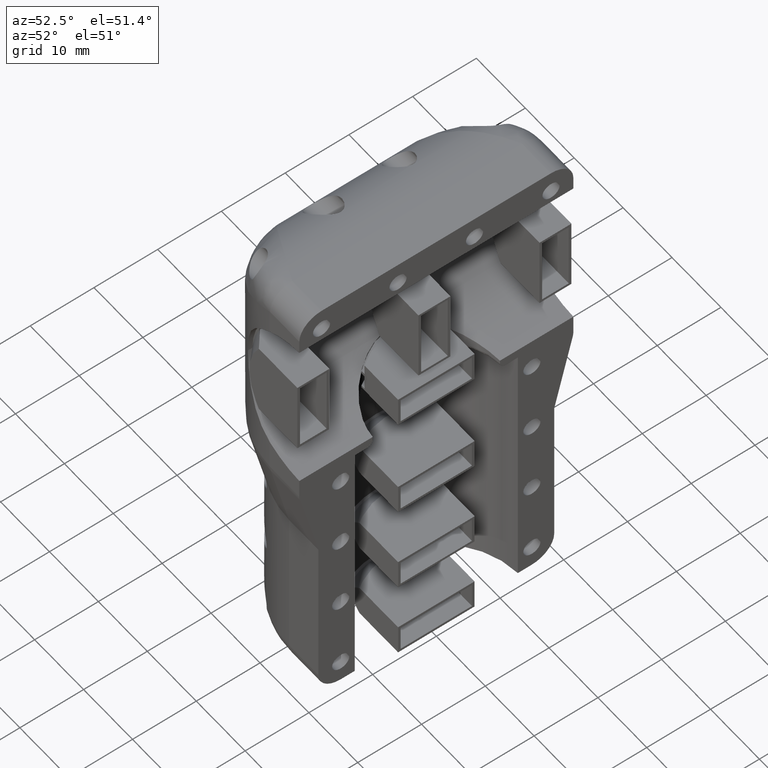
[diagram: clean part render]
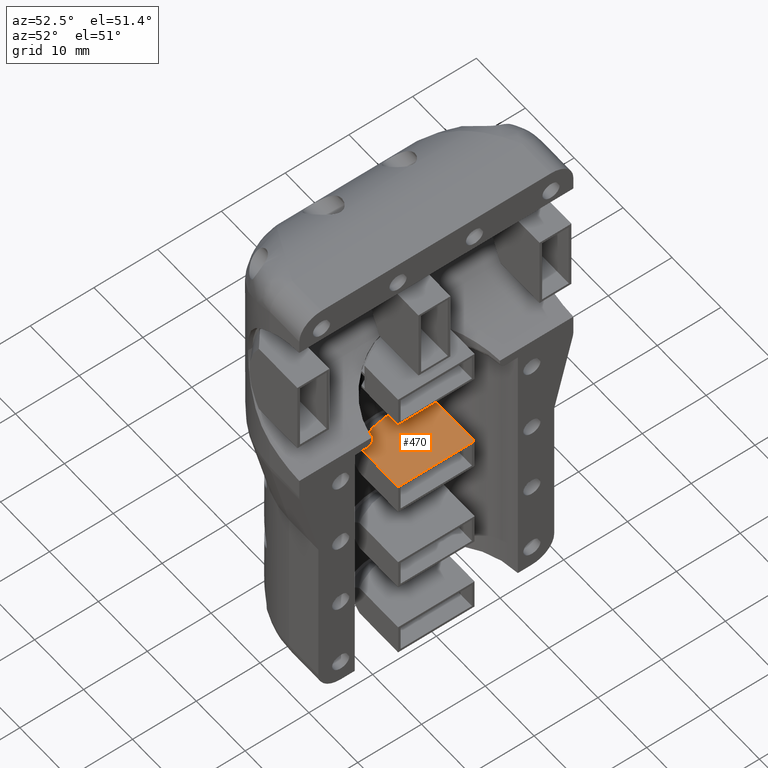
[diagram: same view with one face highlighted and labeled with its STEP entity id]
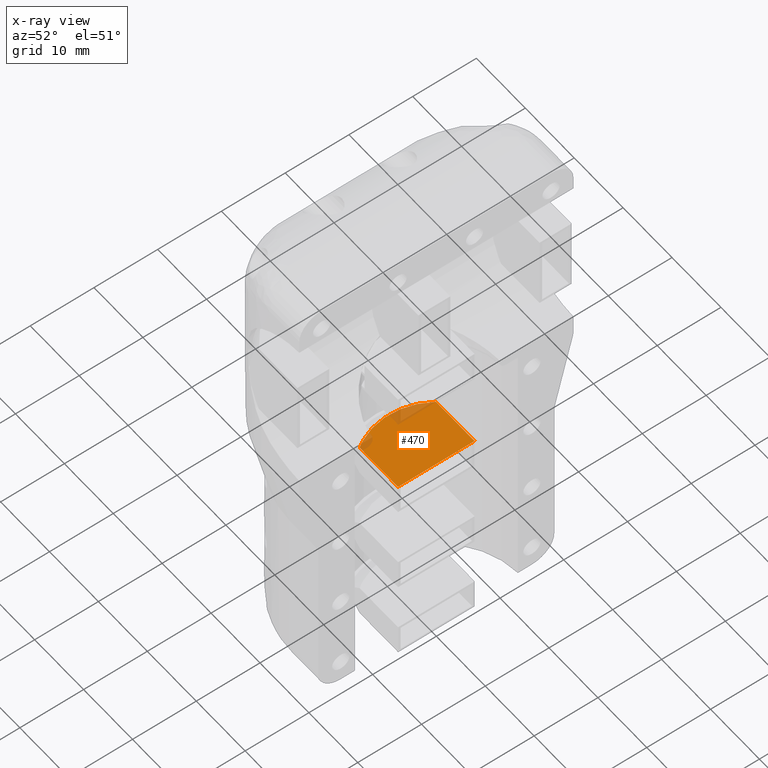
[diagram: x-ray of the same camera — body ghosted, the highlighted face saturated]
A machine part, auxiliary view. The second image highlights one B-rep face of the part: STEP entity #470.
The next image is the same camera in x-ray: the body ghosted, the highlighted face saturated — about 9% of this face is hidden behind the body in this view.
In plain terms, the highlighted planar face has unit normal (0, 0, 1).
Its self-contained STEP definition (entity closure, byte-faithful):
#470=ADVANCED_FACE('',(#722),#2584,.T.);
#722=FACE_OUTER_BOUND('',#1008,.F.);
#1008=EDGE_LOOP('',(#2048,#2049,#2050,#2051,#2052,#2053));
#2048=ORIENTED_EDGE('',*,*,#4986,.T.);
#2049=ORIENTED_EDGE('',*,*,#4985,.T.);
#2050=ORIENTED_EDGE('',*,*,#4984,.T.);
#2051=ORIENTED_EDGE('',*,*,#4973,.F.);
#2052=ORIENTED_EDGE('',*,*,#4974,.F.);
#2053=ORIENTED_EDGE('',*,*,#4975,.F.);
#2584=PLANE('',#6125);
#3622=CIRCLE('',#5936,10.3);
#3623=CIRCLE('',#5937,10.3);
#3624=CIRCLE('',#5938,10.3);
#3916=LINE('',#9737,#4295);
#3917=LINE('',#9738,#4296);
#3918=LINE('',#9739,#4297);
#4295=VECTOR('',#6904,7.87216659304471);
#4296=VECTOR('',#6905,12.0000000060447);
#4297=VECTOR('',#6906,7.87178577275815);
#4973=EDGE_CURVE('',#5292,#5665,#3622,.T.);
#4974=EDGE_CURVE('',#5291,#5292,#3623,.T.);
#4975=EDGE_CURVE('',#5667,#5291,#3624,.T.);
#4984=EDGE_CURVE('',#5289,#5665,#3916,.T.);
#4985=EDGE_CURVE('',#5287,#5289,#3917,.T.);
#4986=EDGE_CURVE('',#5667,#5287,#3918,.T.);
#5287=VERTEX_POINT('',#7635);
#5289=VERTEX_POINT('',#7637);
#5291=VERTEX_POINT('',#7639);
#5292=VERTEX_POINT('',#7640);
#5665=VERTEX_POINT('',#8013);
#5667=VERTEX_POINT('',#8015);
#5936=AXIS2_PLACEMENT_3D('',#9726,#6889,#6890);
#5937=AXIS2_PLACEMENT_3D('',#9727,#6891,#6892);
#5938=AXIS2_PLACEMENT_3D('',#9728,#6893,#6894);
#6125=AXIS2_PLACEMENT_3D('',#10521,#7389,#7390);
#6889=DIRECTION('',(0.,0.,1.));
#6890=DIRECTION('',(-0.83988848594066,-0.542758999173948,0.));
#6891=DIRECTION('',(0.,0.,1.));
#6892=DIRECTION('',(-0.873938286855906,-0.486036902680614,0.));
#6893=DIRECTION('',(0.,0.,1.));
#6894=DIRECTION('',(-0.812760660255881,0.582597724970176,0.));
#6904=DIRECTION('',(-0.999999999496444,3.17350237937725E-05,0.));
#6905=DIRECTION('',(0.,-1.,0.));
#6906=DIRECTION('',(0.999999999496444,-3.17350237945785E-05,0.));
#7389=DIRECTION('',(0.,0.,1.));
#7390=DIRECTION('',(-1.,0.,0.));
#7635=CARTESIAN_POINT('',(0.,6.00063519971629,31.5097694628473));
#7637=CARTESIAN_POINT('',(0.,-5.99936480632841,31.5097694628473));
#7639=CARTESIAN_POINT('',(-8.50156347138964,-5.00556076845667,31.5097694628473));
#7640=CARTESIAN_POINT('',(-8.1508505219626,-5.58979836233801,31.5097694628473));
#8013=CARTESIAN_POINT('',(-7.87196223987272,-5.99927862158175,31.50976969161));
#8015=CARTESIAN_POINT('',(-7.87158140920094,6.0010486367022,31.50976969161));
#9726=CARTESIAN_POINT('',(0.500000883226194,0.000619329153659365,31.5097694628473));
#9727=CARTESIAN_POINT('',(0.500000883226194,0.000619329153659365,31.5097694628473));
#9728=CARTESIAN_POINT('',(0.500000883226194,0.000619329153659365,31.5097694628473));
#9737=CARTESIAN_POINT('',(0.,-5.99936480632841,31.5097694628473));
#9738=CARTESIAN_POINT('',(0.,6.00063519971628,31.5097694628473));
#9739=CARTESIAN_POINT('',(-7.87178576879475,6.00088501102509,31.5097694628473));
#10521=CARTESIAN_POINT('',(12.8000008832262,12.3006193291537,31.5097694628473));